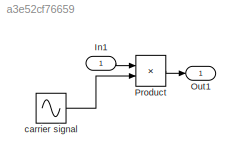
MODEL slx_a3e52cf76659
KIND model
CONFIG AbsTol = auto
CONFIG EnableMultiTasking = off
CONFIG FixedStep = auto
CONFIG MaxStep = auto
CONFIG MinStep = auto
CONFIG RelTol = 1e-3
CONFIG SampleTimeConstraint = Unconstrained
CONFIG SolverName = VariableStepAuto
CONFIG StartTime = 0.0
CONFIG StopTime = 10.0
BLOCK [Inport] In1
BLOCK [Outport] Out1
BLOCK [Product] Product
  Ports = [2, 1]
BLOCK [Sin] carrier signal
  Frequency = 2*pi*1000
  Phase = pi/2
  Ports = [0, 1]
  SampleTime = 0.00001
LINE In1:1 -> Product:1
LINE Product:1 -> Out1:1
LINE carrier signal:1 -> Product:2
